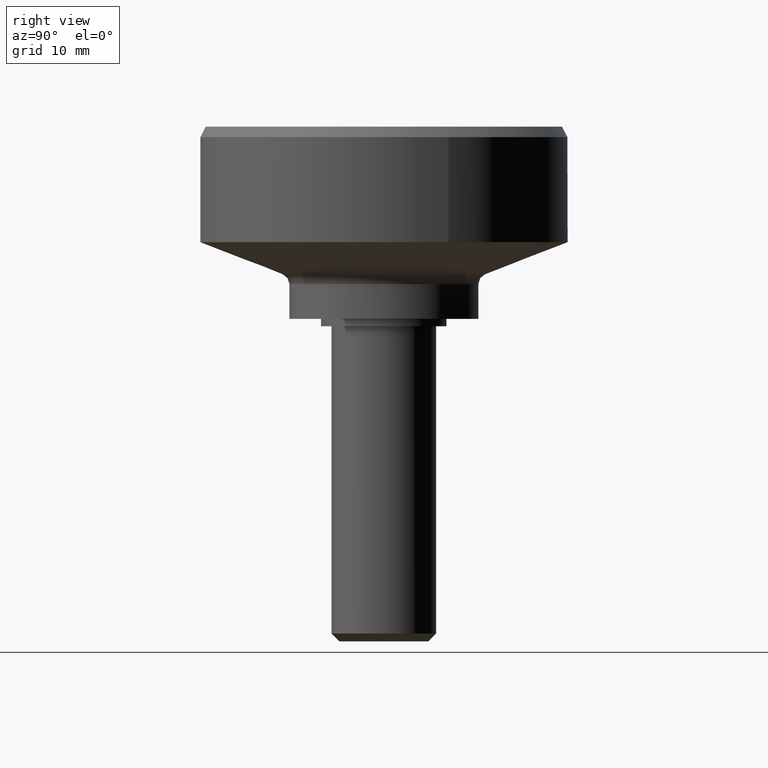
[diagram: clean part render]
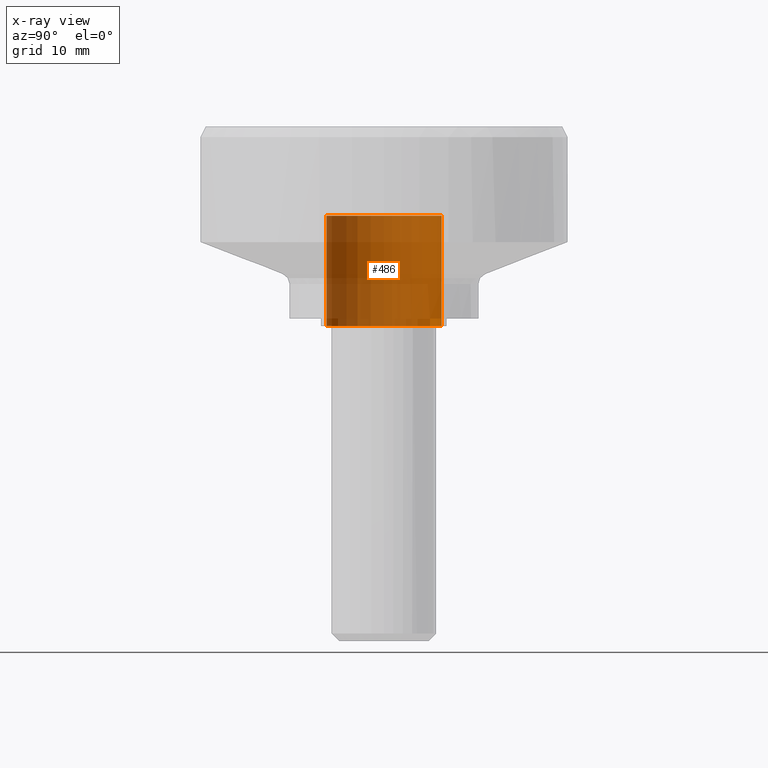
[diagram: x-ray — body ghosted, one internal face saturated and labeled with its STEP entity id]
A machine part, right view, then the same camera in x-ray: the body is ghosted and one INTERNAL B-rep face — a face not visible from any outside direction — is saturated and labeled: STEP entity #486.
In plain terms, the highlighted face is a freeform B-spline surface patch.
Its self-contained STEP definition (entity closure, byte-faithful):
#388=CARTESIAN_POINT('',(-0.431525026503151,-5.483045335532202,10.762499999999999));
#389=CARTESIAN_POINT('',(-5.914570362035351,-5.051520309029052,10.762500000000003));
#390=CARTESIAN_POINT('',(-5.483045335532202,0.431525026503151,10.762499999999999));
#391=CARTESIAN_POINT('',(-5.051520309029052,5.914570362035351,10.762500000000003));
#392=CARTESIAN_POINT('',(0.431525026503151,5.483045335532202,10.762499999999999));
#393=CARTESIAN_POINT('',(-0.431525026503151,-5.483045335532202,-0.269062500000000));
#394=CARTESIAN_POINT('',(-5.914570362035351,-5.051520309029052,-0.269062500000000));
#395=CARTESIAN_POINT('',(-5.483045335532202,0.431525026503151,-0.269062500000000));
#396=CARTESIAN_POINT('',(-5.051520309029052,5.914570362035351,-0.269062500000000));
#397=CARTESIAN_POINT('',(0.431525026503151,5.483045335532202,-0.269062500000000));
#405=(BOUNDED_SURFACE()B_SPLINE_SURFACE(2,1,((#388,#393),(#389,#394),(#390,#395),(#391,#396),(#392,#397)),.UNSPECIFIED.,.F.,.F.,.U.)B_SPLINE_SURFACE_WITH_KNOTS((3,2,3),(2,2),(0.0,9.112698372208088,18.225396744416180),(0.0,11.031562500000010),.UNSPECIFIED.)GEOMETRIC_REPRESENTATION_ITEM()RATIONAL_B_SPLINE_SURFACE(((1.0,1.0),(0.707106781186548,0.707106781186548),(1.0,1.0),(0.707106781186548,0.707106781186548),(1.0,1.0)))REPRESENTATION_ITEM('')SURFACE());
#406=CARTESIAN_POINT('',(-5.500000000000000,0.0,10.500000000000000));
#407=VERTEX_POINT('',#406);
#408=CARTESIAN_POINT('',(-0.431525026543607,-5.483045335529019,10.500000000000000));
#409=VERTEX_POINT('',#408);
#410=CARTESIAN_POINT('',(-5.500000000000000,0.0,10.500000000000000));
#411=CARTESIAN_POINT('',(-5.500000000000000,-5.084147704044875,10.499999999999998));
#412=CARTESIAN_POINT('',(-0.431525026543607,-5.483045335529019,10.500000000000004));
#420=(BOUNDED_CURVE()B_SPLINE_CURVE(2,(#410,#411,#412),.UNSPECIFIED.,.F.,.U.)B_SPLINE_CURVE_WITH_KNOTS((3,3),(0.0,0.236331300630237),.UNSPECIFIED.)CURVE()GEOMETRIC_REPRESENTATION_ITEM()RATIONAL_B_SPLINE_CURVE((1.0,0.723120658608161,0.969723356166536))REPRESENTATION_ITEM(''));
#421=EDGE_CURVE('',#407,#409,#420,.T.);
#422=ORIENTED_EDGE('',*,*,#421,.F.);
#423=CARTESIAN_POINT('',(0.431525026543607,5.483045335529019,10.500000000000000));
#424=VERTEX_POINT('',#423);
#425=CARTESIAN_POINT('',(0.431525026543607,5.483045335529019,10.500000000000004));
#426=CARTESIAN_POINT('',(0.216095588582829,5.500000000000002,10.499999999999998));
#427=CARTESIAN_POINT('',(0.0,5.500000000000000,10.500000000000000));
#428=CARTESIAN_POINT('',(-5.500000000000001,5.500000000000001,10.500000000000002));
#429=CARTESIAN_POINT('',(-5.500000000000000,0.0,10.500000000000000));
#437=(BOUNDED_CURVE()B_SPLINE_CURVE(2,(#425,#426,#427,#428,#429),.UNSPECIFIED.,.F.,.U.)B_SPLINE_CURVE_WITH_KNOTS((3,2,3),(0.736331300630237,0.750000000000000,1.0),.UNSPECIFIED.)CURVE()GEOMETRIC_REPRESENTATION_ITEM()RATIONAL_B_SPLINE_CURVE((0.969723356166536,0.983986122578387,1.0,0.707106781186548,1.0))REPRESENTATION_ITEM(''));
#438=EDGE_CURVE('',#424,#407,#437,.T.);
#439=ORIENTED_EDGE('',*,*,#438,.F.);
#440=CARTESIAN_POINT('',(0.431525026543609,5.483045335529019,-5.551115E-017));
#441=VERTEX_POINT('',#440);
#442=CARTESIAN_POINT('',(0.431525026543607,5.483045335529019,10.500000000000000));
#443=CARTESIAN_POINT('',(0.431525026543609,5.483045335529019,-5.551115E-017));
#444=QUASI_UNIFORM_CURVE('',1,(#442,#443),.UNSPECIFIED.,.F.,.U.);
#445=EDGE_CURVE('',#424,#441,#444,.T.);
#446=ORIENTED_EDGE('',*,*,#445,.T.);
#447=CARTESIAN_POINT('',(-5.500000000000000,0.0,0.0));
#448=VERTEX_POINT('',#447);
#449=CARTESIAN_POINT('',(0.431525026543609,5.483045335529019,-5.551115E-017));
#450=CARTESIAN_POINT('',(0.216095588582830,5.500000000000000,0.0));
#451=CARTESIAN_POINT('',(0.0,5.500000000000000,0.0));
#452=CARTESIAN_POINT('',(-5.500000000000001,5.500000000000001,0.0));
#453=CARTESIAN_POINT('',(-5.500000000000000,0.0,0.0));
#461=(BOUNDED_CURVE()B_SPLINE_CURVE(2,(#449,#450,#451,#452,#453),.UNSPECIFIED.,.F.,.U.)B_SPLINE_CURVE_WITH_KNOTS((3,2,3),(0.736331300630237,0.750000000000000,1.0),.UNSPECIFIED.)CURVE()GEOMETRIC_REPRESENTATION_ITEM()RATIONAL_B_SPLINE_CURVE((0.969723356166536,0.983986122578387,1.0,0.707106781186548,1.0))REPRESENTATION_ITEM(''));
#462=EDGE_CURVE('',#441,#448,#461,.T.);
#463=ORIENTED_EDGE('',*,*,#462,.T.);
#464=CARTESIAN_POINT('',(-0.431525026543607,-5.483045335529019,-5.551115E-017));
#465=VERTEX_POINT('',#464);
#466=CARTESIAN_POINT('',(-5.500000000000000,0.0,0.0));
#467=CARTESIAN_POINT('',(-5.500000000000000,-5.084147704044875,0.0));
#468=CARTESIAN_POINT('',(-0.431525026543607,-5.483045335529019,-5.551115E-017));
#476=(BOUNDED_CURVE()B_SPLINE_CURVE(2,(#466,#467,#468),.UNSPECIFIED.,.F.,.U.)B_SPLINE_CURVE_WITH_KNOTS((3,3),(0.0,0.236331300630237),.UNSPECIFIED.)CURVE()GEOMETRIC_REPRESENTATION_ITEM()RATIONAL_B_SPLINE_CURVE((1.0,0.723120658608161,0.969723356166536))REPRESENTATION_ITEM(''));
#477=EDGE_CURVE('',#448,#465,#476,.T.);
#478=ORIENTED_EDGE('',*,*,#477,.T.);
#479=CARTESIAN_POINT('',(-0.431525026543607,-5.483045335529019,10.500000000000000));
#480=CARTESIAN_POINT('',(-0.431525026543607,-5.483045335529019,-5.551115E-017));
#481=QUASI_UNIFORM_CURVE('',1,(#479,#480),.UNSPECIFIED.,.F.,.U.);
#482=EDGE_CURVE('',#409,#465,#481,.T.);
#483=ORIENTED_EDGE('',*,*,#482,.F.);
#484=EDGE_LOOP('',(#422,#439,#446,#463,#478,#483));
#485=FACE_OUTER_BOUND('',#484,.T.);
#486=ADVANCED_FACE('',(#485),#405,.T.);